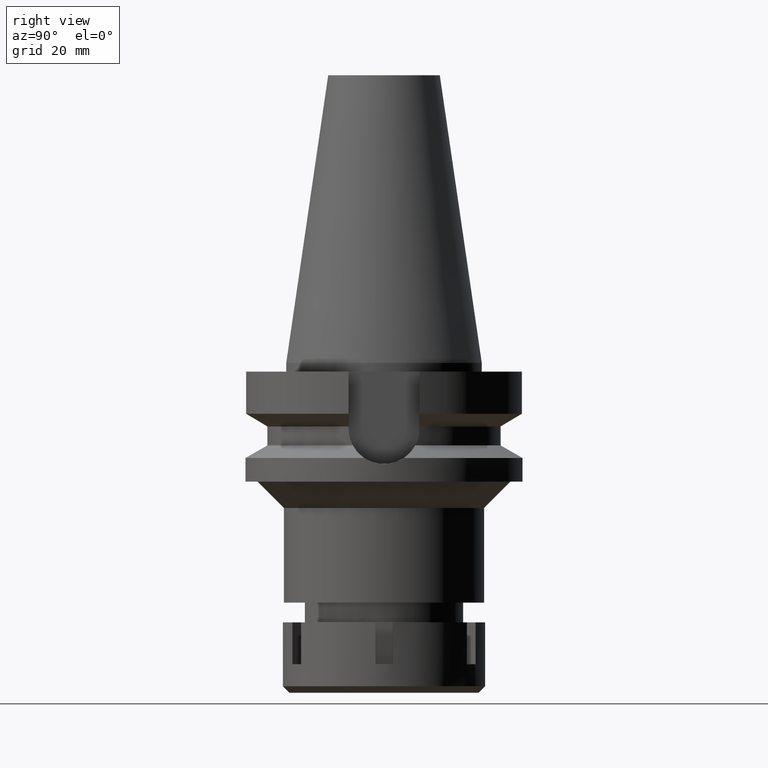
[diagram: clean part render]
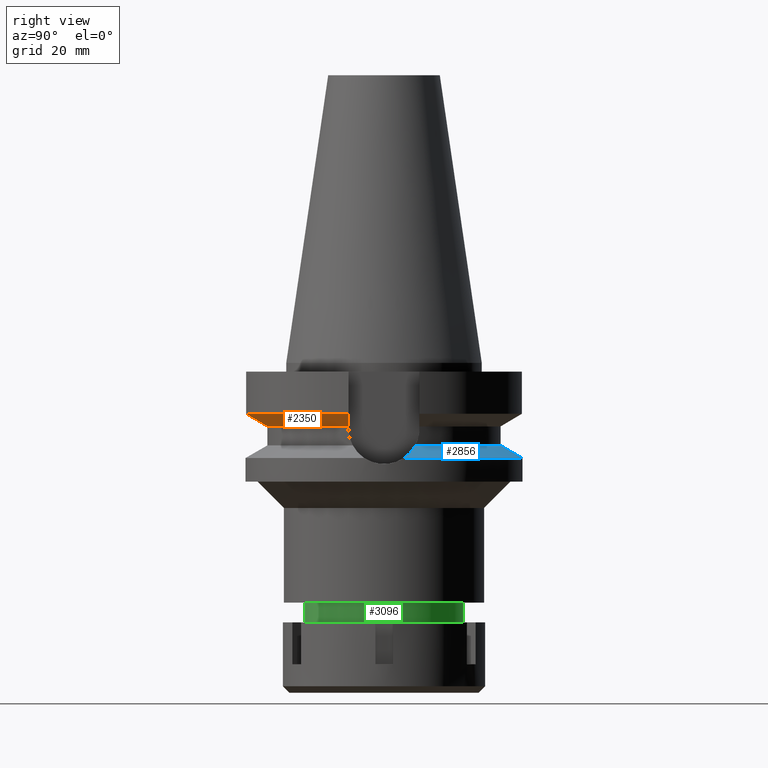
[diagram: same view with three faces highlighted in distinct colors, each labeled with its STEP entity id]
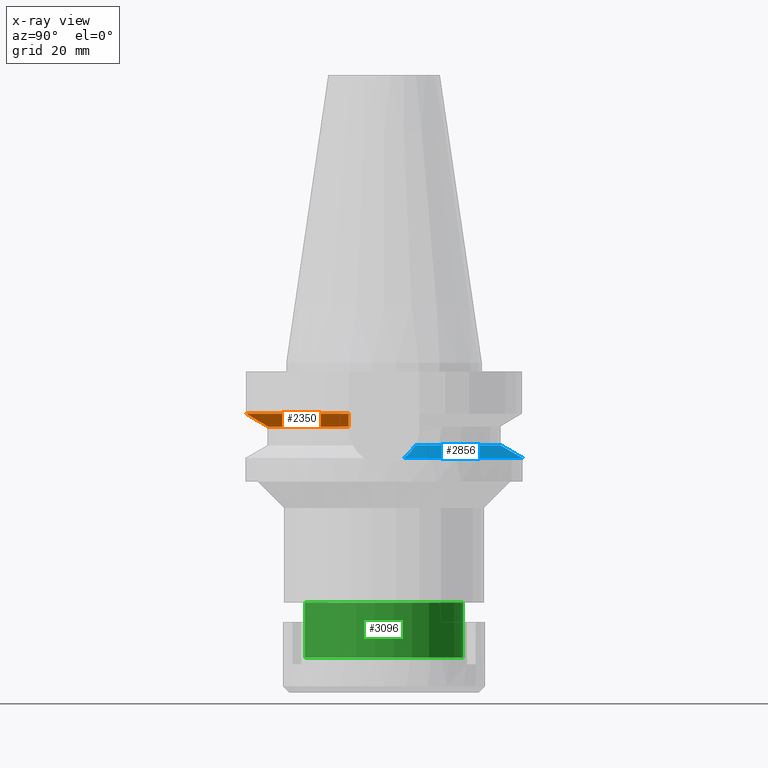
[diagram: x-ray of the same camera — body ghosted, the three highlighted faces saturated]
A machine part, right view with three faces highlighted in distinct colors.
The next image is the same camera in x-ray (body ghosted, the three faces saturated) — at least one of them is partly hidden behind the body in this view.
Their STEP definitions:

[orange] entity #2350 — the highlighted conical surface has half-angle 60 deg.
#114 = CARTESIAN_POINT ( 'NONE',  ( 0.0000000000000000000, 1.065333950388000029E-14, -11.56550565266999975 ) ) ;
#140 = DIRECTION ( 'NONE',  ( 0.0000000000000000000, 0.0000000000000000000, 1.000000000000000000 ) ) ;
#304 = ORIENTED_EDGE ( 'NONE', *, *, #882, .F. ) ;
#604 = VERTEX_POINT ( 'NONE', #1670 ) ;
#709 = CARTESIAN_POINT ( 'NONE',  ( 25.24772266958000344, -8.050000000000000711, -14.45225699861000024 ) ) ;
#723 = CARTESIAN_POINT ( 'NONE',  ( -25.24772413746000055, -8.049995396191999220, -14.45229217772000041 ) ) ;
#791 = EDGE_CURVE ( 'NONE', #2329, #1747, #3487, .T. ) ;
#882 = EDGE_CURVE ( 'NONE', #2329, #604, #2324, .T. ) ;
#1194 = EDGE_LOOP ( 'NONE', ( #2270, #1693, #2511, #304 ) ) ;
#1203 = AXIS2_PLACEMENT_3D ( 'NONE', #2458, #1951, #1416 ) ;
#1304 = CARTESIAN_POINT ( 'NONE',  ( 0.0000000000000000000, 1.065333950388000029E-14, -13.00888132564000088 ) ) ;
#1416 = DIRECTION ( 'NONE',  ( 0.9527442516822307583, -0.3037735849057093818, 0.0000000000000000000 ) ) ;
#1670 = CARTESIAN_POINT ( 'NONE',  ( 30.45402272279000044, -8.049999999999000622, -11.56550565266999975 ) ) ;
#1693 = ORIENTED_EDGE ( 'NONE', *, *, #1943, .F. ) ;
#1715 = CONICAL_SURFACE ( 'NONE', #1772, 29.00000000000000000, 1.047197551196400456 ) ;
#1747 = VERTEX_POINT ( 'NONE', #2075 ) ;
#1772 = AXIS2_PLACEMENT_3D ( 'NONE', #1304, #140, #3440 ) ;
#1787 = FACE_OUTER_BOUND ( 'NONE', #1194, .T. ) ;
#1943 = EDGE_CURVE ( 'NONE', #2859, #1747, #2502, .T. ) ;
#1951 = DIRECTION ( 'NONE',  ( 0.0000000000000000000, 0.0000000000000000000, -1.000000000000000000 ) ) ;
#2007 = DIRECTION ( 'NONE',  ( 0.0000000000000000000, -1.000000000000000000, 0.0000000000000000000 ) ) ;
#2075 = CARTESIAN_POINT ( 'NONE',  ( -25.24772413746000055, -8.049995396191999220, -14.45229217772000041 ) ) ;
#2114 = CARTESIAN_POINT ( 'NONE',  ( 25.24772266958000344, -8.050000000000000711, -14.45225699861000024 ) ) ;
#2267 = CARTESIAN_POINT ( 'NONE',  ( -30.45402291549999774, -8.049999270937000517, -11.56551221918000039 ) ) ;
#2270 = ORIENTED_EDGE ( 'NONE', *, *, #791, .T. ) ;
#2324 = CIRCLE ( 'NONE', #2493, 31.50000000000000000 ) ;
#2329 = VERTEX_POINT ( 'NONE', #3223 ) ;
#2343 = CARTESIAN_POINT ( 'NONE',  ( 26.83757683426394536, -8.050003144357106066, -13.57772991492340964 ) ) ;
#2350 = ADVANCED_FACE ( 'NONE', ( #1787 ), #1715, .T. ) ;
#2458 = CARTESIAN_POINT ( 'NONE',  ( 0.0000000000000000000, 1.065333950388000029E-14, -14.45225699861000024 ) ) ;
#2493 = AXIS2_PLACEMENT_3D ( 'NONE', #114, #2807, #2007 ) ;
#2502 = CIRCLE ( 'NONE', #1203, 26.50000000000000711 ) ;
#2511 = ORIENTED_EDGE ( 'NONE', *, *, #2930, .T. ) ;
#2807 = DIRECTION ( 'NONE',  ( 0.0000000000000000000, 0.0000000000000000000, 1.000000000000000000 ) ) ;
#2826 = CARTESIAN_POINT ( 'NONE',  ( -26.83754594054483888, -8.049990782187768090, -13.57774900847907062 ) ) ;
#2859 = VERTEX_POINT ( 'NONE', #2114 ) ;
#2930 = EDGE_CURVE ( 'NONE', #2859, #604, #3439, .T. ) ;
#3181 = CARTESIAN_POINT ( 'NONE',  ( 30.45402272279000044, -8.049999999999000622, -11.56550565266999975 ) ) ;
#3223 = CARTESIAN_POINT ( 'NONE',  ( -30.45402291549999774, -8.049999270937000517, -11.56551221918000039 ) ) ;
#3439 = B_SPLINE_CURVE_WITH_KNOTS ( 'NONE', 3,
 ( #709, #2343, #3456, #3181 ),
 .UNSPECIFIED., .F., .F.,
 ( 4, 4 ),
 ( 0.0000000000000000000, 1.000000000000000000 ),
 .UNSPECIFIED. ) ;
#3440 = DIRECTION ( 'NONE',  ( 0.0000000000000000000, 1.000000000000000000, 0.0000000000000000000 ) ) ;
#3450 = CARTESIAN_POINT ( 'NONE',  ( -28.57292307904591411, -8.049998542826038772, -12.61549617544695145 ) ) ;
#3456 = CARTESIAN_POINT ( 'NONE',  ( 28.57294905781581207, -8.050008310798885347, -12.61548015487103669 ) ) ;
#3487 = B_SPLINE_CURVE_WITH_KNOTS ( 'NONE', 3,
 ( #2267, #3450, #2826, #723 ),
 .UNSPECIFIED., .F., .F.,
 ( 4, 4 ),
 ( 0.0000000000000000000, 1.000000000000000000 ),
 .UNSPECIFIED. ) ;

[blue] entity #2856 — the highlighted conical surface has half-angle 60 deg.
#28 = CARTESIAN_POINT ( 'NONE',  ( 0.0000000000000000000, 31.50000000000000000, -21.63449434733000132 ) ) ;
#63 = ORIENTED_EDGE ( 'NONE', *, *, #2442, .F. ) ;
#124 = ORIENTED_EDGE ( 'NONE', *, *, #1629, .F. ) ;
#145 = CARTESIAN_POINT ( 'NONE',  ( -31.17899877608999759, 4.485536235554000051, -21.63449434733000132 ) ) ;
#164 = CARTESIAN_POINT ( 'NONE',  ( -29.75901477410750573, 5.446591164836214638, -20.91126326064347296 ) ) ;
#171 = DIRECTION ( 'NONE',  ( 0.0000000000000000000, 0.0000000000000000000, -1.000000000000000000 ) ) ;
#219 = CARTESIAN_POINT ( 'NONE',  ( -28.73786869404888833, 5.934034321740029760, -20.38980052403871923 ) ) ;
#354 = CARTESIAN_POINT ( 'NONE',  ( 29.91839341751219195, 5.321263659588868933, -20.99235413795229732 ) ) ;
#376 = CARTESIAN_POINT ( 'NONE',  ( 30.50031384421627223, 4.971237530566688712, -21.28899513076380146 ) ) ;
#397 = AXIS2_PLACEMENT_3D ( 'NONE', #1191, #2252, #655 ) ;
#425 = CARTESIAN_POINT ( 'NONE',  ( 29.07516205137043386, 5.771406449141258221, -20.56203348709772882 ) ) ;
#451 = AXIS2_PLACEMENT_3D ( 'NONE', #1569, #171, #1026 ) ;
#560 = ORIENTED_EDGE ( 'NONE', *, *, #1293, .F. ) ;
#575 = CIRCLE ( 'NONE', #1027, 31.50000000000000000 ) ;
#582 = CARTESIAN_POINT ( 'NONE',  ( 0.0000000000000000000, 0.0000000000000000000, -18.74774300138999905 ) ) ;
#655 = DIRECTION ( 'NONE',  ( -0.9898094849552905306, 0.1423979757318985240, 0.0000000000000000000 ) ) ;
#673 = EDGE_CURVE ( 'NONE', #3486, #1817, #2179, .T. ) ;
#688 = CARTESIAN_POINT ( 'NONE',  ( -25.53175183775000079, 7.097862220092999941, -18.74774300138999905 ) ) ;
#734 = CARTESIAN_POINT ( 'NONE',  ( -31.17899877608999759, 4.485536235554000051, -21.63449434733000132 ) ) ;
#784 = DIRECTION ( 'NONE',  ( 0.0000000000000000000, 1.000000000000000000, 0.0000000000000000000 ) ) ;
#893 = CARTESIAN_POINT ( 'NONE',  ( 29.71631919441098546, 5.436136960395018036, -20.88928667679491724 ) ) ;
#1026 = DIRECTION ( 'NONE',  ( 0.0000000000000000000, -1.000000000000000000, 0.0000000000000000000 ) ) ;
#1027 = AXIS2_PLACEMENT_3D ( 'NONE', #1890, #3011, #784 ) ;
#1036 = CARTESIAN_POINT ( 'NONE',  ( -27.86758446961929536, 6.314952581893669148, -19.94524253173561590 ) ) ;
#1092 = B_SPLINE_CURVE_WITH_KNOTS ( 'NONE', 3,
 ( #2804, #1242, #376, #354, #893, #2823, #1756, #425, #3138, #2600, #1458, #2587, #2282 ),
 .UNSPECIFIED., .F., .F.,
 ( 4, 2, 2, 1, 2, 2, 4 ),
 ( 0.0000000000000000000, 0.2499999999999987788, 0.3749999999999989453, 0.4374999999999989453, 0.4687499999999992784, 0.4999999999999995559, 1.000000000000000000 ),
 .UNSPECIFIED. ) ;
#1191 = CARTESIAN_POINT ( 'NONE',  ( 0.0000000000000000000, 0.0000000000000000000, -21.63449434733000132 ) ) ;
#1242 = CARTESIAN_POINT ( 'NONE',  ( 30.85585780521952870, 4.730693158344057458, -21.46998523064741704 ) ) ;
#1293 = EDGE_CURVE ( 'NONE', #2966, #3486, #1092, .T. ) ;
#1303 = EDGE_LOOP ( 'NONE', ( #2028, #1445, #560, #63, #124 ) ) ;
#1329 = CARTESIAN_POINT ( 'NONE',  ( -25.53175183775000079, 7.097862220092999941, -18.74774300138999905 ) ) ;
#1445 = ORIENTED_EDGE ( 'NONE', *, *, #673, .F. ) ;
#1458 = CARTESIAN_POINT ( 'NONE',  ( 27.91926333380432368, 6.325268913949843252, -19.97175822900939224 ) ) ;
#1521 = CARTESIAN_POINT ( 'NONE',  ( -28.43744539110873149, 6.071954064702835829, -20.23638910463709806 ) ) ;
#1535 = CARTESIAN_POINT ( 'NONE',  ( -28.79867874757695390, 5.905407214744510469, -20.42085242292575842 ) ) ;
#1544 = CONICAL_SURFACE ( 'NONE', #451, 29.00000000000000000, 1.047197551196400456 ) ;
#1569 = CARTESIAN_POINT ( 'NONE',  ( 0.0000000000000000000, 0.0000000000000000000, -20.19111867435999841 ) ) ;
#1578 = CARTESIAN_POINT ( 'NONE',  ( -28.61851906234316800, 5.989333063456983020, -20.32885513170801772 ) ) ;
#1601 = CIRCLE ( 'NONE', #397, 31.50000000000001421 ) ;
#1629 = EDGE_CURVE ( 'NONE', #3434, #2681, #1601, .T. ) ;
#1706 = DIRECTION ( 'NONE',  ( 0.0000000000000000000, 0.0000000000000000000, 1.000000000000000000 ) ) ;
#1745 = EDGE_CURVE ( 'NONE', #1817, #3434, #2745, .T. ) ;
#1756 = CARTESIAN_POINT ( 'NONE',  ( 29.24038773015860215, 5.688970916103084363, -20.64639342973291036 ) ) ;
#1774 = CARTESIAN_POINT ( 'NONE',  ( -26.17308825864125055, 6.921569827732485969, -19.07722793782528115 ) ) ;
#1815 = FACE_OUTER_BOUND ( 'NONE', #1303, .T. ) ;
#1817 = VERTEX_POINT ( 'NONE', #1329 ) ;
#1890 = CARTESIAN_POINT ( 'NONE',  ( 0.0000000000000000000, 0.0000000000000000000, -21.63449434733000132 ) ) ;
#2028 = ORIENTED_EDGE ( 'NONE', *, *, #1745, .F. ) ;
#2138 = CARTESIAN_POINT ( 'NONE',  ( -26.77070790778094533, 6.727981200856463673, -19.38387315684913759 ) ) ;
#2179 = CIRCLE ( 'NONE', #2751, 26.49999999999998224 ) ;
#2236 = DIRECTION ( 'NONE',  ( 0.9634623335000935818, 0.2678438573619981722, 0.0000000000000000000 ) ) ;
#2252 = DIRECTION ( 'NONE',  ( 0.0000000000000000000, 0.0000000000000000000, -1.000000000000000000 ) ) ;
#2282 = CARTESIAN_POINT ( 'NONE',  ( 25.53175183775000079, 7.097862220092999941, -18.74774300138999905 ) ) ;
#2397 = CARTESIAN_POINT ( 'NONE',  ( 31.17899877608999759, 4.485536235554000051, -21.63449434733000132 ) ) ;
#2442 = EDGE_CURVE ( 'NONE', #2681, #2966, #575, .T. ) ;
#2587 = CARTESIAN_POINT ( 'NONE',  ( 26.81274158996307122, 6.745740087858077771, -19.40584819131963457 ) ) ;
#2600 = CARTESIAN_POINT ( 'NONE',  ( 28.90957042774059005, 5.852447019408096196, -20.47747884759274939 ) ) ;
#2681 = VERTEX_POINT ( 'NONE', #28 ) ;
#2745 = B_SPLINE_CURVE_WITH_KNOTS ( 'NONE', 3,
 ( #688, #1774, #2138, #3190, #1036, #3229, #1521, #1578, #219, #1535, #164, #3498, #145 ),
 .UNSPECIFIED., .F., .F.,
 ( 4, 2, 2, 1, 2, 2, 4 ),
 ( 0.0000000000000000000, 0.2499999999999991118, 0.3749999999999992228, 0.4374999999999992784, 0.4687499999999998335, 0.5000000000000004441, 1.000000000000000000 ),
 .UNSPECIFIED. ) ;
#2747 = CARTESIAN_POINT ( 'NONE',  ( 25.53175183775000079, 7.097862220092999941, -18.74774300138999905 ) ) ;
#2751 = AXIS2_PLACEMENT_3D ( 'NONE', #582, #1706, #2236 ) ;
#2804 = CARTESIAN_POINT ( 'NONE',  ( 31.17899877608999759, 4.485536235554000051, -21.63449434733000132 ) ) ;
#2823 = CARTESIAN_POINT ( 'NONE',  ( 29.40105673845937062, 5.605229383090769346, -20.72840431116302895 ) ) ;
#2856 = ADVANCED_FACE ( 'NONE', ( #1815 ), #1544, .T. ) ;
#2966 = VERTEX_POINT ( 'NONE', #2397 ) ;
#3011 = DIRECTION ( 'NONE',  ( 0.0000000000000000000, 0.0000000000000000000, -1.000000000000000000 ) ) ;
#3138 = CARTESIAN_POINT ( 'NONE',  ( 28.96399900540332695, 5.826062088496481550, -20.50527252279125889 ) ) ;
#3190 = CARTESIAN_POINT ( 'NONE',  ( -27.60156222386313374, 6.420369916023540569, -19.80921451409035328 ) ) ;
#3229 = CARTESIAN_POINT ( 'NONE',  ( -28.25022404884672866, 6.153507422171305308, -20.14076005233234667 ) ) ;
#3434 = VERTEX_POINT ( 'NONE', #734 ) ;
#3486 = VERTEX_POINT ( 'NONE', #2747 ) ;
#3498 = CARTESIAN_POINT ( 'NONE',  ( -30.53362466544458087, 4.975161338147387369, -21.30593828528860456 ) ) ;

[green] entity #3096 — the highlighted cylindrical surface (partial cylindrical patch) has radius 18 mm, axis along (0, 0, -1).
#62 = DIRECTION ( 'NONE',  ( 0.0000000000000000000, 0.0000000000000000000, -1.000000000000000000 ) ) ;
#239 = CARTESIAN_POINT ( 'NONE',  ( 0.0000000000000000000, 2.106637423893000012E-14, -67.00000000000000000 ) ) ;
#336 = AXIS2_PLACEMENT_3D ( 'NONE', #2057, #2806, #2589 ) ;
#347 = CARTESIAN_POINT ( 'NONE',  ( 0.0000000000000000000, -18.00000000000000000, -67.00000000000000000 ) ) ;
#386 = ORIENTED_EDGE ( 'NONE', *, *, #624, .F. ) ;
#433 = DIRECTION ( 'NONE',  ( 0.0000000000000000000, 0.0000000000000000000, -1.000000000000000000 ) ) ;
#624 = EDGE_CURVE ( 'NONE', #3048, #1869, #3554, .T. ) ;
#665 = VERTEX_POINT ( 'NONE', #2466 ) ;
#984 = ORIENTED_EDGE ( 'NONE', *, *, #3385, .T. ) ;
#987 = CIRCLE ( 'NONE', #3343, 18.00000000000000000 ) ;
#1002 = CARTESIAN_POINT ( 'NONE',  ( 0.0000000000000000000, 18.00000000000000000, -67.00000000000000000 ) ) ;
#1032 = AXIS2_PLACEMENT_3D ( 'NONE', #2450, #62, #1174 ) ;
#1174 = DIRECTION ( 'NONE',  ( 0.0000000000000000000, -1.000000000000000000, 0.0000000000000000000 ) ) ;
#1234 = CARTESIAN_POINT ( 'NONE',  ( 0.0000000000000000000, -18.00000000000000000, -54.50000000000000000 ) ) ;
#1370 = CYLINDRICAL_SURFACE ( 'NONE', #1032, 18.00000000000000000 ) ;
#1586 = ORIENTED_EDGE ( 'NONE', *, *, #1661, .T. ) ;
#1661 = EDGE_CURVE ( 'NONE', #3048, #665, #3321, .T. ) ;
#1722 = DIRECTION ( 'NONE',  ( 0.0000000000000000000, 0.0000000000000000000, -1.000000000000000000 ) ) ;
#1801 = LINE ( 'NONE', #1234, #2003 ) ;
#1869 = VERTEX_POINT ( 'NONE', #1002 ) ;
#1913 = ORIENTED_EDGE ( 'NONE', *, *, #2876, .T. ) ;
#2003 = VECTOR ( 'NONE', #433, 1000.000000000000000 ) ;
#2057 = CARTESIAN_POINT ( 'NONE',  ( 0.0000000000000000000, 2.106637423893000012E-14, -54.50000000000000000 ) ) ;
#2450 = CARTESIAN_POINT ( 'NONE',  ( 0.0000000000000000000, 2.106637423893000012E-14, 72.01999999999999602 ) ) ;
#2466 = CARTESIAN_POINT ( 'NONE',  ( 0.0000000000000000000, -18.00000000000000000, -54.50000000000000000 ) ) ;
#2589 = DIRECTION ( 'NONE',  ( 0.0000000000000000000, 1.000000000000000000, 0.0000000000000000000 ) ) ;
#2626 = EDGE_LOOP ( 'NONE', ( #1586, #1913, #984, #386 ) ) ;
#2640 = VERTEX_POINT ( 'NONE', #347 ) ;
#2671 = DIRECTION ( 'NONE',  ( 0.0000000000000000000, 0.0000000000000000000, 1.000000000000000000 ) ) ;
#2702 = CARTESIAN_POINT ( 'NONE',  ( 0.0000000000000000000, 18.00000000000000000, -54.50000000000000000 ) ) ;
#2718 = FACE_OUTER_BOUND ( 'NONE', #2626, .T. ) ;
#2806 = DIRECTION ( 'NONE',  ( 0.0000000000000000000, 0.0000000000000000000, -1.000000000000000000 ) ) ;
#2876 = EDGE_CURVE ( 'NONE', #665, #2640, #1801, .T. ) ;
#3048 = VERTEX_POINT ( 'NONE', #2702 ) ;
#3070 = CARTESIAN_POINT ( 'NONE',  ( 0.0000000000000000000, 18.00000000000000000, -54.50000000000000000 ) ) ;
#3096 = ADVANCED_FACE ( 'NONE', ( #2718 ), #1370, .T. ) ;
#3108 = VECTOR ( 'NONE', #1722, 1000.000000000000000 ) ;
#3176 = DIRECTION ( 'NONE',  ( 0.0000000000000000000, -1.000000000000000000, 0.0000000000000000000 ) ) ;
#3321 = CIRCLE ( 'NONE', #336, 18.00000000000000000 ) ;
#3343 = AXIS2_PLACEMENT_3D ( 'NONE', #239, #2671, #3176 ) ;
#3385 = EDGE_CURVE ( 'NONE', #2640, #1869, #987, .T. ) ;
#3554 = LINE ( 'NONE', #3070, #3108 ) ;